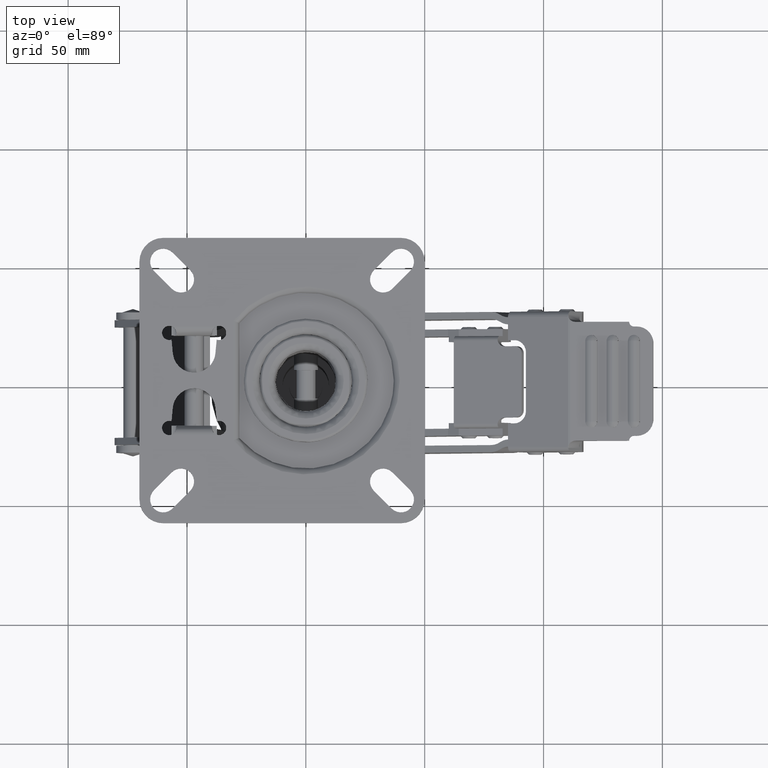
[diagram: clean part render]
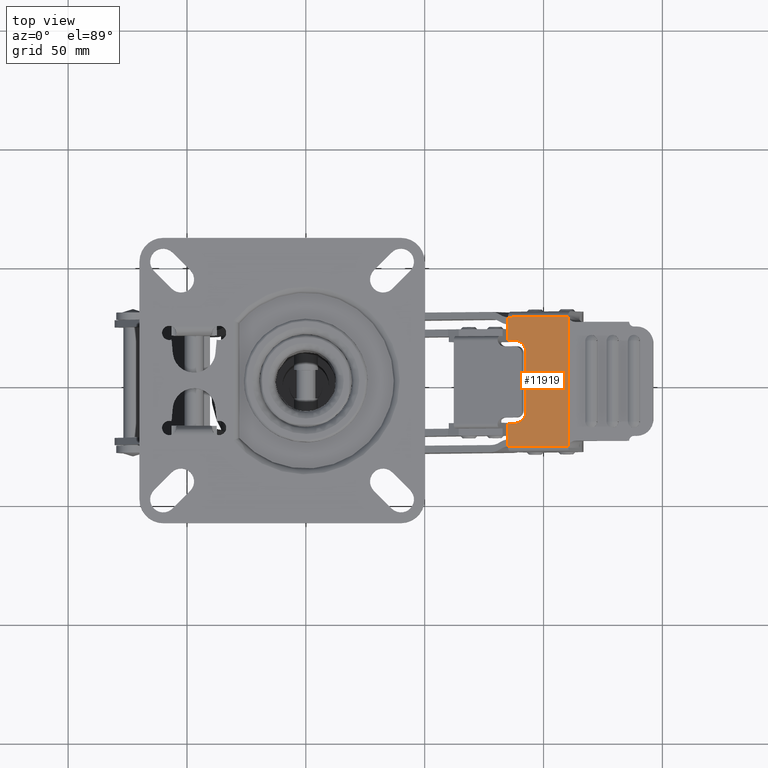
[diagram: same view with one face highlighted and labeled with its STEP entity id]
A machine part, top view. The second image highlights one B-rep face of the part: STEP entity #11919.
In plain terms, the highlighted face is a freeform B-spline surface patch.
Its self-contained STEP definition (entity closure, byte-faithful):
#8050=CARTESIAN_POINT('',(92.579520999914109,-12.499999999999840,-28.407610600144299));
#8051=VERTEX_POINT('',#8050);
#8057=CARTESIAN_POINT('',(92.579521000010004,12.499999999959201,-28.407610599916900));
#8058=VERTEX_POINT('',#8057);
#8059=CARTESIAN_POINT('',(92.579521000010004,12.499999999959201,-28.407610599916900));
#8060=CARTESIAN_POINT('',(92.579520999914109,-12.499999999999840,-28.407610600144299));
#8061=QUASI_UNIFORM_CURVE('',1,(#8059,#8060),.UNSPECIFIED.,.F.,.U.);
#8062=EDGE_CURVE('',#8058,#8051,#8061,.T.);
#8087=CARTESIAN_POINT('',(90.079076174372105,16.830383808655949,-29.713404755300200));
#8088=VERTEX_POINT('',#8087);
#8119=CARTESIAN_POINT('',(87.579521000000000,17.500000000000000,-31.018734312390649));
#8120=VERTEX_POINT('',#8119);
#8121=CARTESIAN_POINT('',(87.579521000000000,17.500000000000000,-31.018734312390649));
#8122=CARTESIAN_POINT('',(88.039681014063092,17.518393348369869,-30.778427367575549));
#8123=CARTESIAN_POINT('',(88.910098069778456,17.412082500777579,-30.323874044859831));
#8124=CARTESIAN_POINT('',(89.722837933927948,17.050766551198180,-29.899441178653799));
#8125=CARTESIAN_POINT('',(90.079076174372105,16.830383808655949,-29.713404755300200));
#8126=B_SPLINE_CURVE_WITH_KNOTS('',3,(#8121,#8122,#8123,#8124,#8125),.UNSPECIFIED.,.F.,.U.,(4,1,4),(0.000000045636735,1.558315111085924,2.933350660068557),.UNSPECIFIED.);
#8127=EDGE_CURVE('',#8120,#8088,#8126,.T.);
#8167=CARTESIAN_POINT('',(87.579521000495888,-17.500000000027502,-31.018734313338548));
#8168=VERTEX_POINT('',#8167);
#8174=CARTESIAN_POINT('',(90.772202957677010,-16.347958149086850,-29.351436799432101));
#8175=VERTEX_POINT('',#8174);
#8176=CARTESIAN_POINT('',(90.772202957677010,-16.347958149086850,-29.351436799432101));
#8177=CARTESIAN_POINT('',(90.408172268305535,-16.672190060196801,-29.541542632419379));
#8178=CARTESIAN_POINT('',(89.689317863666005,-17.138537757218511,-29.916946188838931));
#8179=CARTESIAN_POINT('',(88.580569536537695,-17.477668041365440,-30.495961998838890));
#8180=CARTESIAN_POINT('',(87.900218308354297,-17.517676411894762,-30.851258244132310));
#8181=CARTESIAN_POINT('',(87.579521000495888,-17.500000000027502,-31.018734313338548));
#8182=B_SPLINE_CURVE_WITH_KNOTS('',3,(#8176,#8177,#8178,#8179,#8180,#8181),.UNSPECIFIED.,.F.,.U.,(4,1,1,4),(0.000000085493514,1.569691815681190,2.777091546064691,3.863787469423619),.UNSPECIFIED.);
#8183=EDGE_CURVE('',#8175,#8168,#8182,.T.);
#8227=CARTESIAN_POINT('',(85.045006397335811,-17.500000000000000,-32.342320547915953));
#8228=VERTEX_POINT('',#8227);
#8229=CARTESIAN_POINT('',(87.579521000495888,-17.500000000027502,-31.018734313338548));
#8230=CARTESIAN_POINT('',(85.045006397335811,-17.500000000000000,-32.342320547915953));
#8231=QUASI_UNIFORM_CURVE('',1,(#8229,#8230),.UNSPECIFIED.,.F.,.U.);
#8232=EDGE_CURVE('',#8168,#8228,#8231,.T.);
#8257=CARTESIAN_POINT('',(85.045006397335811,17.500000000000000,-32.342320547915953));
#8258=VERTEX_POINT('',#8257);
#8270=CARTESIAN_POINT('',(85.045006397335811,17.500000000000000,-32.342320547915953));
#8271=CARTESIAN_POINT('',(87.579521000000000,17.500000000000000,-31.018734312390649));
#8272=QUASI_UNIFORM_CURVE('',1,(#8270,#8271),.UNSPECIFIED.,.F.,.U.);
#8273=EDGE_CURVE('',#8258,#8120,#8272,.T.);
#8292=CARTESIAN_POINT('',(90.079076174372091,16.830383808655949,-29.713404755300189));
#8293=CARTESIAN_POINT('',(92.579521000000000,15.387093772877341,-28.407610600311827));
#8294=CARTESIAN_POINT('',(92.579521000010004,12.499999999959201,-28.407610599916900));
#8302=(BOUNDED_CURVE()B_SPLINE_CURVE(2,(#8292,#8293,#8294),.UNSPECIFIED.,.F.,.U.)CURVE()GEOMETRIC_REPRESENTATION_ITEM()QUASI_UNIFORM_CURVE()RATIONAL_B_SPLINE_CURVE((1.0,0.865999721384025,1.0))REPRESENTATION_ITEM(''));
#8303=EDGE_CURVE('',#8088,#8058,#8302,.T.);
#8323=CARTESIAN_POINT('',(92.579520999914109,-12.499999999999840,-28.407610600144299));
#8324=CARTESIAN_POINT('',(92.579521000000000,-14.848411770995884,-28.407610600311830));
#8325=CARTESIAN_POINT('',(90.772202957677010,-16.347958149086850,-29.351436799432101));
#8333=(BOUNDED_CURVE()B_SPLINE_CURVE(2,(#8323,#8324,#8325),.UNSPECIFIED.,.F.,.U.)CURVE()GEOMETRIC_REPRESENTATION_ITEM()QUASI_UNIFORM_CURVE()RATIONAL_B_SPLINE_CURVE((1.0,0.905134352329917,1.0))REPRESENTATION_ITEM(''));
#8334=EDGE_CURVE('',#8051,#8175,#8333,.T.);
#8851=CARTESIAN_POINT('',(85.045006397335811,27.199999999999999,-32.342320547915953));
#8852=VERTEX_POINT('',#8851);
#8865=CARTESIAN_POINT('',(110.307811727905400,27.199999999999999,-19.149458541459701));
#8866=VERTEX_POINT('',#8865);
#8867=CARTESIAN_POINT('',(85.045006397335811,27.199999999999999,-32.342320547915953));
#8868=CARTESIAN_POINT('',(110.307811727905400,27.199999999999999,-19.149458541459701));
#8869=QUASI_UNIFORM_CURVE('',1,(#8867,#8868),.UNSPECIFIED.,.F.,.U.);
#8870=EDGE_CURVE('',#8852,#8866,#8869,.T.);
#11246=CARTESIAN_POINT('',(85.045006397335811,-27.199999999999999,-32.342320547915953));
#11247=VERTEX_POINT('',#11246);
#11287=CARTESIAN_POINT('',(110.307811727905400,-27.199999999999999,-19.149458541459701));
#11288=VERTEX_POINT('',#11287);
#11302=CARTESIAN_POINT('',(85.045006397335811,-27.199999999999999,-32.342320547915953));
#11303=CARTESIAN_POINT('',(110.307811727905400,-27.199999999999999,-19.149458541459701));
#11304=QUASI_UNIFORM_CURVE('',1,(#11302,#11303),.UNSPECIFIED.,.F.,.U.);
#11305=EDGE_CURVE('',#11247,#11288,#11304,.T.);
#11706=CARTESIAN_POINT('',(110.307811727905400,27.199999999999999,-19.149458541459701));
#11707=CARTESIAN_POINT('',(110.307811727905400,-27.199999999999999,-19.149458541459701));
#11708=QUASI_UNIFORM_CURVE('',1,(#11706,#11707),.UNSPECIFIED.,.F.,.U.);
#11709=EDGE_CURVE('',#8866,#11288,#11708,.T.);
#11801=CARTESIAN_POINT('',(85.045006397335811,-17.500000000000000,-32.342320547915953));
#11802=CARTESIAN_POINT('',(85.045006397335811,-27.199999999999999,-32.342320547915953));
#11803=QUASI_UNIFORM_CURVE('',1,(#11801,#11802),.UNSPECIFIED.,.F.,.U.);
#11804=EDGE_CURVE('',#8228,#11247,#11803,.T.);
#11896=CARTESIAN_POINT('',(111.569685959413410,-29.917280915898811,-18.490476595949271));
#11897=CARTESIAN_POINT('',(83.783128777821560,-29.917280915898811,-33.001304262726997));
#11898=CARTESIAN_POINT('',(111.569685959413410,29.917281402272710,-18.490476595949271));
#11899=CARTESIAN_POINT('',(83.783128777821560,29.917281402272710,-33.001304262726997));
#11900=B_SPLINE_SURFACE_WITH_KNOTS('',1,1,((#11896,#11898),(#11897,#11899)),.UNSPECIFIED.,.F.,.F.,.U.,(2,2),(2,2),(0.0,31.347358414718052),(0.0,59.834562318171507),.UNSPECIFIED.);
#11901=ORIENTED_EDGE('',*,*,#8273,.T.);
#11902=ORIENTED_EDGE('',*,*,#8127,.T.);
#11903=ORIENTED_EDGE('',*,*,#8303,.T.);
#11904=ORIENTED_EDGE('',*,*,#8062,.T.);
#11905=ORIENTED_EDGE('',*,*,#8334,.T.);
#11906=ORIENTED_EDGE('',*,*,#8183,.T.);
#11907=ORIENTED_EDGE('',*,*,#8232,.T.);
#11908=ORIENTED_EDGE('',*,*,#11804,.T.);
#11909=ORIENTED_EDGE('',*,*,#11305,.T.);
#11910=ORIENTED_EDGE('',*,*,#11709,.F.);
#11911=ORIENTED_EDGE('',*,*,#8870,.F.);
#11912=CARTESIAN_POINT('',(85.045006397335811,27.199999999999999,-32.342320547915953));
#11913=CARTESIAN_POINT('',(85.045006397335811,17.500000000000000,-32.342320547915953));
#11914=QUASI_UNIFORM_CURVE('',1,(#11912,#11913),.UNSPECIFIED.,.F.,.U.);
#11915=EDGE_CURVE('',#8852,#8258,#11914,.T.);
#11916=ORIENTED_EDGE('',*,*,#11915,.T.);
#11917=EDGE_LOOP('',(#11901,#11902,#11903,#11904,#11905,#11906,#11907,#11908,#11909,#11910,#11911,#11916));
#11918=FACE_OUTER_BOUND('',#11917,.T.);
#11919=ADVANCED_FACE('',(#11918),#11900,.F.);